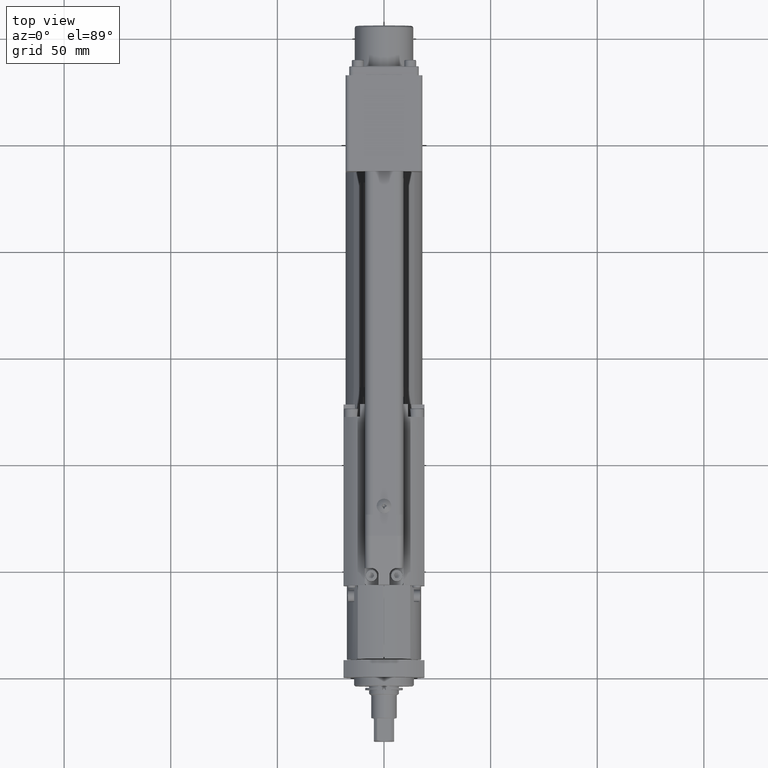
[diagram: clean part render]
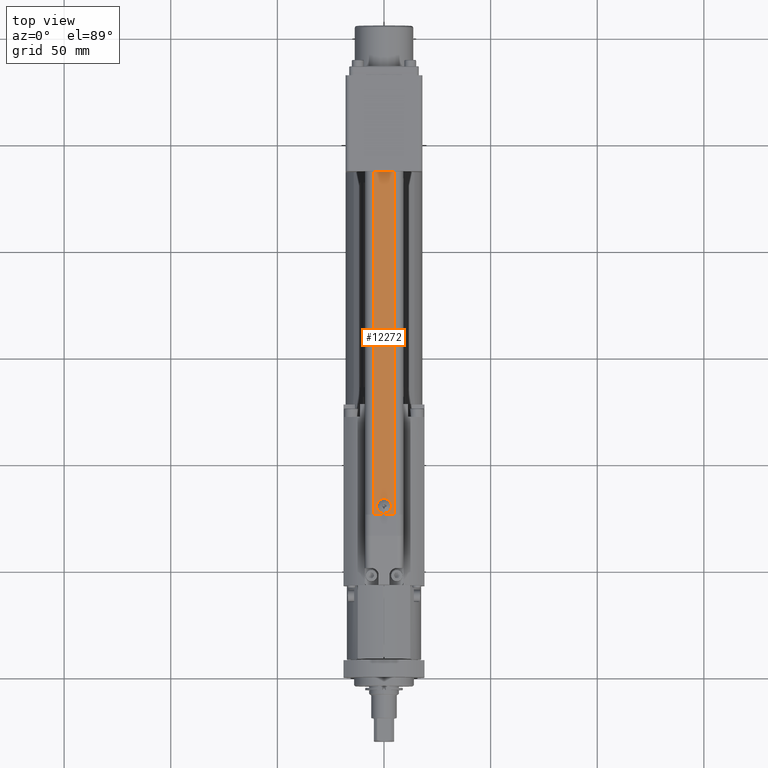
[diagram: same view with one face highlighted and labeled with its STEP entity id]
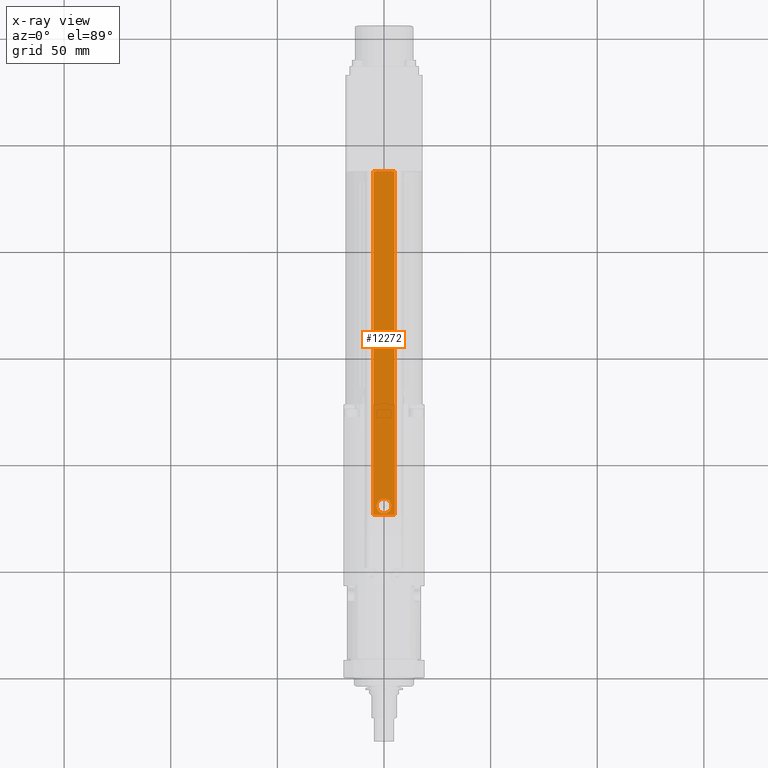
[diagram: x-ray of the same camera — body ghosted, the highlighted face saturated]
A machine part, top view. The second image highlights one B-rep face of the part: STEP entity #12272.
The next image is the same camera in x-ray: the body ghosted, the highlighted face saturated — about 0% of this face is hidden behind the body in this view.
In plain terms, the highlighted planar face has unit normal (-0, 0, 1).
Its self-contained STEP definition (entity closure, byte-faithful):
#454=FACE_BOUND('',#1362,.T.);
#643=FACE_OUTER_BOUND('',#1361,.T.);
#1361=EDGE_LOOP('',(#8096,#8097,#8098,#8099));
#1362=EDGE_LOOP('',(#8100));
#2101=CIRCLE('',#12968,3.45);
#2638=LINE('',#17849,#3682);
#2756=LINE('',#19003,#3800);
#2757=LINE('',#19006,#3801);
#2758=LINE('',#19007,#3802);
#3682=VECTOR('',#14273,10.);
#3800=VECTOR('',#14723,10.);
#3801=VECTOR('',#14726,10.);
#3802=VECTOR('',#14727,10.);
#4752=VERTEX_POINT('',#17846);
#4753=VERTEX_POINT('',#17848);
#4790=VERTEX_POINT('',#18469);
#4919=VERTEX_POINT('',#19001);
#4920=VERTEX_POINT('',#19005);
#5877=EDGE_CURVE('',#4752,#4753,#2638,.T.);
#5932=EDGE_CURVE('',#4790,#4790,#2101,.T.);
#6125=EDGE_CURVE('',#4919,#4753,#2756,.T.);
#6126=EDGE_CURVE('',#4919,#4920,#2757,.T.);
#6127=EDGE_CURVE('',#4920,#4752,#2758,.T.);
#8096=ORIENTED_EDGE('',*,*,#6126,.F.);
#8097=ORIENTED_EDGE('',*,*,#6125,.T.);
#8098=ORIENTED_EDGE('',*,*,#5877,.F.);
#8099=ORIENTED_EDGE('',*,*,#6127,.F.);
#8100=ORIENTED_EDGE('',*,*,#5932,.T.);
#11090=PLANE('',#13103);
#12272=ADVANCED_FACE('',(#643,#454),#11090,.T.);
#12968=AXIS2_PLACEMENT_3D('',#18470,#14354,#14355);
#13103=AXIS2_PLACEMENT_3D('',#19004,#14724,#14725);
#14273=DIRECTION('',(1.,-4.90546703537902E-16,1.42786419031425E-16));
#14354=DIRECTION('center_axis',(1.42786419031425E-16,-2.22044604925032E-16,
-1.));
#14355=DIRECTION('ref_axis',(1.,2.63821719657868E-15,1.42786419031424E-16));
#14723=DIRECTION('',(8.3266726846888E-16,1.,-2.22044604925032E-16));
#14724=DIRECTION('center_axis',(-1.42786419031425E-16,2.22044604925032E-16,
1.));
#14725=DIRECTION('ref_axis',(1.,-8.3266726846888E-16,1.42786419031425E-16));
#14726=DIRECTION('',(-1.,8.3266726846888E-16,-1.42786419031425E-16));
#14727=DIRECTION('',(8.3266726846888E-16,1.,-2.22044604925032E-16));
#17846=CARTESIAN_POINT('',(-4.99999999999985,237.,33.));
#17848=CARTESIAN_POINT('',(5.00000000000015,237.,33.));
#17849=CARTESIAN_POINT('',(-2.49999999994871,237.,33.));
#18469=CARTESIAN_POINT('',(-3.44999999999998,79.9999999999999,33.));
#18470=CARTESIAN_POINT('Origin',(1.86027316890913E-14,80.,33.));
#19001=CARTESIAN_POINT('',(5.00000000000001,76.,33.));
#19003=CARTESIAN_POINT('',(5.00000000000001,76.,33.));
#19004=CARTESIAN_POINT('Origin',(-4.99999999999998,76.,33.));
#19005=CARTESIAN_POINT('',(-4.99999999999998,76.,33.));
#19006=CARTESIAN_POINT('',(1.11022302462516E-14,76.,33.));
#19007=CARTESIAN_POINT('',(-4.99999999999998,76.,33.));